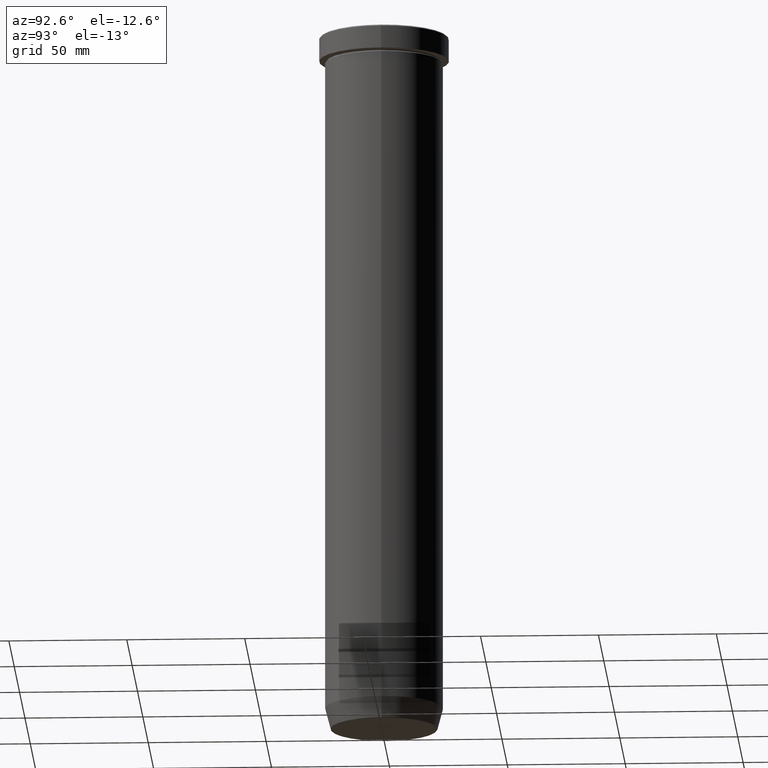
[diagram: clean part render]
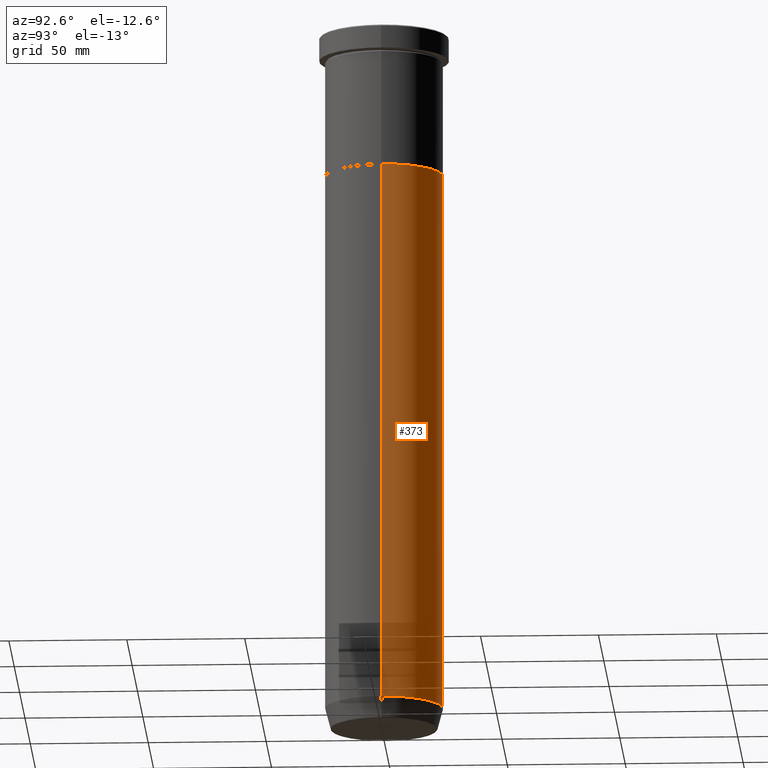
[diagram: same view with one face highlighted and labeled with its STEP entity id]
A machine part, auxiliary view. The second image highlights one B-rep face of the part: STEP entity #373.
In plain terms, the highlighted cylindrical surface (partial cylindrical patch) has radius 25 mm, axis along (-0, -0, 1).
Its self-contained STEP definition (entity closure, byte-faithful):
#6 = VERTEX_POINT ( 'NONE', #210 ) ;
#10 = CARTESIAN_POINT ( 'NONE',  ( -25.00000000000000000, 3.061616997868383043E-15, -291.0000000000000000 ) ) ;
#17 = CIRCLE ( 'NONE', #319, 25.00000000000000000 ) ;
#24 = CIRCLE ( 'NONE', #195, 25.00000000000000000 ) ;
#38 = EDGE_CURVE ( 'NONE', #432, #240, #17, .T. ) ;
#60 = AXIS2_PLACEMENT_3D ( 'NONE', #532, #121, #220 ) ;
#98 = EDGE_CURVE ( 'NONE', #432, #484, #250, .T. ) ;
#102 = CARTESIAN_POINT ( 'NONE',  ( 0.000000000000000000, 0.000000000000000000, -291.0000000000000000 ) ) ;
#121 = DIRECTION ( 'NONE',  ( -0.000000000000000000, -0.000000000000000000, 1.000000000000000000 ) ) ;
#141 = DIRECTION ( 'NONE',  ( 1.000000000000000000, 0.000000000000000000, 0.000000000000000000 ) ) ;
#146 = LINE ( 'NONE', #462, #537 ) ;
#193 = DIRECTION ( 'NONE',  ( -0.000000000000000000, -0.000000000000000000, 1.000000000000000000 ) ) ;
#195 = AXIS2_PLACEMENT_3D ( 'NONE', #446, #193, #141 ) ;
#209 = ORIENTED_EDGE ( 'NONE', *, *, #424, .F. ) ;
#210 = CARTESIAN_POINT ( 'NONE',  ( -25.00000000000000000, 3.061616997868383043E-15, -60.00000000000000000 ) ) ;
#220 = DIRECTION ( 'NONE',  ( 1.000000000000000000, 0.000000000000000000, 0.000000000000000000 ) ) ;
#240 = VERTEX_POINT ( 'NONE', #10 ) ;
#250 = LINE ( 'NONE', #379, #565 ) ;
#254 = DIRECTION ( 'NONE',  ( -0.000000000000000000, -0.000000000000000000, 1.000000000000000000 ) ) ;
#259 = CYLINDRICAL_SURFACE ( 'NONE', #60, 25.00000000000000000 ) ;
#265 = FACE_OUTER_BOUND ( 'NONE', #519, .T. ) ;
#296 = DIRECTION ( 'NONE',  ( -0.000000000000000000, -0.000000000000000000, 1.000000000000000000 ) ) ;
#319 = AXIS2_PLACEMENT_3D ( 'NONE', #102, #296, #576 ) ;
#356 = ORIENTED_EDGE ( 'NONE', *, *, #98, .F. ) ;
#373 = ADVANCED_FACE ( 'NONE', ( #265 ), #259, .T. ) ;
#379 = CARTESIAN_POINT ( 'NONE',  ( 25.00000000000000000, 0.000000000000000000, 0.000000000000000000 ) ) ;
#385 = ORIENTED_EDGE ( 'NONE', *, *, #593, .T. ) ;
#386 = DIRECTION ( 'NONE',  ( -0.000000000000000000, -0.000000000000000000, 1.000000000000000000 ) ) ;
#407 = CARTESIAN_POINT ( 'NONE',  ( 25.00000000000000000, 0.000000000000000000, -291.0000000000000000 ) ) ;
#424 = EDGE_CURVE ( 'NONE', #484, #6, #24, .T. ) ;
#432 = VERTEX_POINT ( 'NONE', #407 ) ;
#446 = CARTESIAN_POINT ( 'NONE',  ( 0.000000000000000000, 0.000000000000000000, -60.00000000000000000 ) ) ;
#460 = ORIENTED_EDGE ( 'NONE', *, *, #38, .T. ) ;
#462 = CARTESIAN_POINT ( 'NONE',  ( -25.00000000000000000, 3.061616997868383043E-15, 0.000000000000000000 ) ) ;
#464 = CARTESIAN_POINT ( 'NONE',  ( 25.00000000000000000, 0.000000000000000000, -60.00000000000000000 ) ) ;
#484 = VERTEX_POINT ( 'NONE', #464 ) ;
#519 = EDGE_LOOP ( 'NONE', ( #460, #385, #209, #356 ) ) ;
#532 = CARTESIAN_POINT ( 'NONE',  ( 0.000000000000000000, 0.000000000000000000, 0.000000000000000000 ) ) ;
#537 = VECTOR ( 'NONE', #254, 1000.000000000000000 ) ;
#565 = VECTOR ( 'NONE', #386, 1000.000000000000000 ) ;
#576 = DIRECTION ( 'NONE',  ( 1.000000000000000000, 0.000000000000000000, 0.000000000000000000 ) ) ;
#593 = EDGE_CURVE ( 'NONE', #240, #6, #146, .T. ) ;